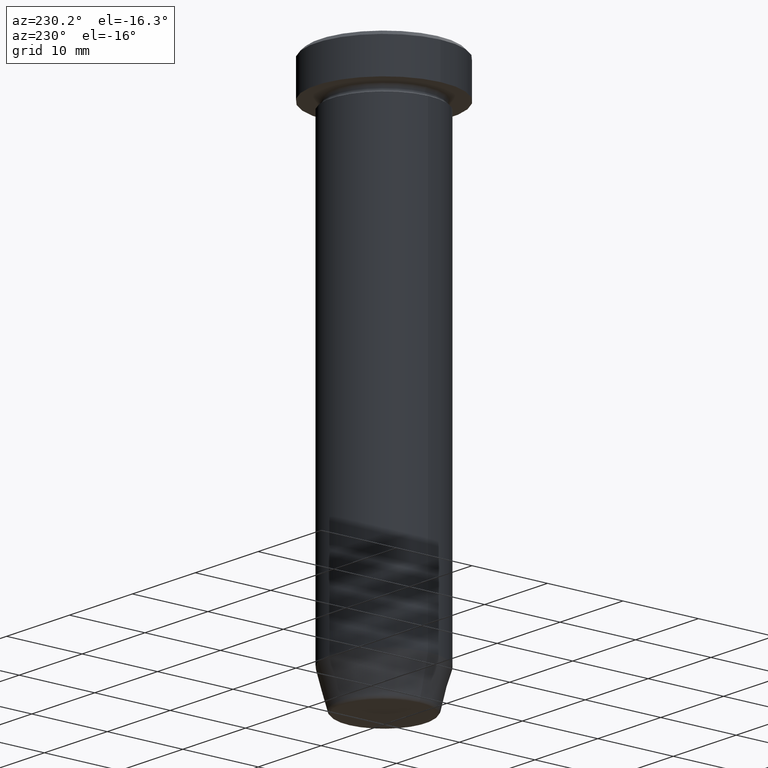
[diagram: clean part render]
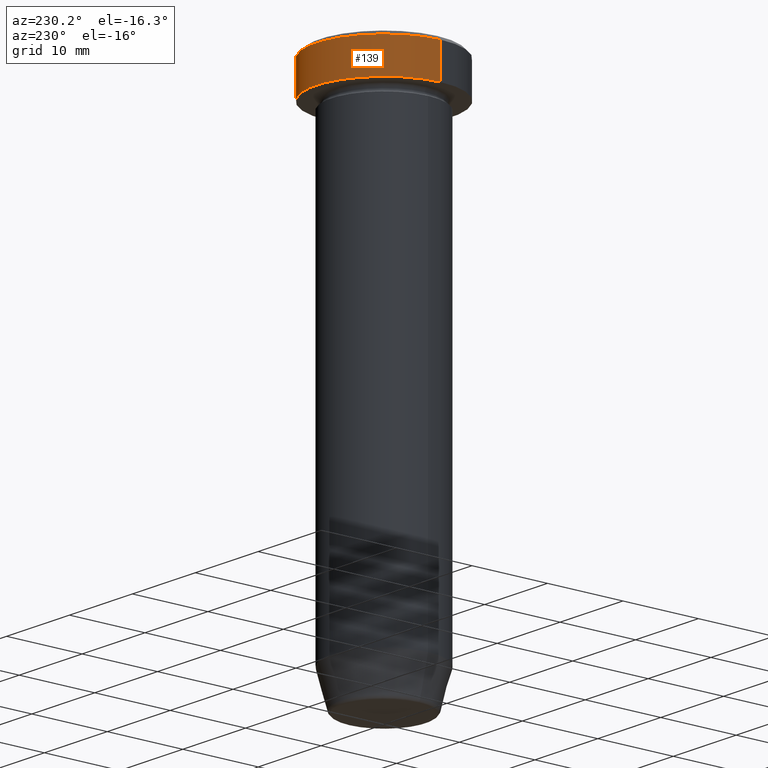
[diagram: same view with one face highlighted and labeled with its STEP entity id]
A machine part, auxiliary view. The second image highlights one B-rep face of the part: STEP entity #139.
In plain terms, the highlighted cylindrical surface (partial cylindrical patch) has radius 9 mm, axis along (-0, -0, 1).
Its self-contained STEP definition (entity closure, byte-faithful):
#31 = CIRCLE ( 'NONE', #121, 9.000000000000000000 ) ;
#51 = CARTESIAN_POINT ( 'NONE',  ( 9.000000000000000000, 0.000000000000000000, -0.4999999999999952260 ) ) ;
#58 = LINE ( 'NONE', #484, #463 ) ;
#60 = DIRECTION ( 'NONE',  ( 1.000000000000000000, 0.000000000000000000, 0.000000000000000000 ) ) ;
#85 = DIRECTION ( 'NONE',  ( -0.000000000000000000, -0.000000000000000000, 1.000000000000000000 ) ) ;
#90 = DIRECTION ( 'NONE',  ( -0.000000000000000000, -0.000000000000000000, 1.000000000000000000 ) ) ;
#111 = ORIENTED_EDGE ( 'NONE', *, *, #538, .F. ) ;
#121 = AXIS2_PLACEMENT_3D ( 'NONE', #552, #466, #134 ) ;
#134 = DIRECTION ( 'NONE',  ( 1.000000000000000000, 0.000000000000000000, 0.000000000000000000 ) ) ;
#139 = ADVANCED_FACE ( 'NONE', ( #320 ), #587, .T. ) ;
#160 = AXIS2_PLACEMENT_3D ( 'NONE', #482, #523, #60 ) ;
#223 = CARTESIAN_POINT ( 'NONE',  ( 9.000000000000000000, 0.000000000000000000, 0.000000000000000000 ) ) ;
#228 = ORIENTED_EDGE ( 'NONE', *, *, #314, .T. ) ;
#255 = VERTEX_POINT ( 'NONE', #505 ) ;
#281 = VERTEX_POINT ( 'NONE', #522 ) ;
#302 = CARTESIAN_POINT ( 'NONE',  ( -9.000000000000000000, 1.102182119232617714E-15, -0.4999999999999952260 ) ) ;
#314 = EDGE_CURVE ( 'NONE', #377, #487, #336, .T. ) ;
#316 = DIRECTION ( 'NONE',  ( 1.000000000000000000, 0.000000000000000000, 0.000000000000000000 ) ) ;
#320 = FACE_OUTER_BOUND ( 'NONE', #379, .T. ) ;
#336 = CIRCLE ( 'NONE', #160, 9.000000000000000000 ) ;
#348 = EDGE_CURVE ( 'NONE', #255, #377, #58, .T. ) ;
#362 = VECTOR ( 'NONE', #90, 1000.000000000000000 ) ;
#364 = DIRECTION ( 'NONE',  ( -0.000000000000000000, -0.000000000000000000, 1.000000000000000000 ) ) ;
#377 = VERTEX_POINT ( 'NONE', #302 ) ;
#379 = EDGE_LOOP ( 'NONE', ( #456, #553, #228, #111 ) ) ;
#416 = AXIS2_PLACEMENT_3D ( 'NONE', #557, #85, #316 ) ;
#418 = EDGE_CURVE ( 'NONE', #281, #255, #31, .T. ) ;
#456 = ORIENTED_EDGE ( 'NONE', *, *, #418, .T. ) ;
#463 = VECTOR ( 'NONE', #364, 1000.000000000000000 ) ;
#466 = DIRECTION ( 'NONE',  ( -0.000000000000000000, -0.000000000000000000, 1.000000000000000000 ) ) ;
#482 = CARTESIAN_POINT ( 'NONE',  ( 0.000000000000000000, 0.000000000000000000, -0.4999999999999952260 ) ) ;
#484 = CARTESIAN_POINT ( 'NONE',  ( -9.000000000000000000, 1.102182119232617714E-15, 0.000000000000000000 ) ) ;
#487 = VERTEX_POINT ( 'NONE', #51 ) ;
#505 = CARTESIAN_POINT ( 'NONE',  ( -9.000000000000000000, 1.102182119232617714E-15, -5.000000000000000000 ) ) ;
#514 = LINE ( 'NONE', #223, #362 ) ;
#522 = CARTESIAN_POINT ( 'NONE',  ( 9.000000000000000000, 0.000000000000000000, -5.000000000000000000 ) ) ;
#523 = DIRECTION ( 'NONE',  ( 0.000000000000000000, 0.000000000000000000, -1.000000000000000000 ) ) ;
#538 = EDGE_CURVE ( 'NONE', #281, #487, #514, .T. ) ;
#552 = CARTESIAN_POINT ( 'NONE',  ( 0.000000000000000000, 0.000000000000000000, -5.000000000000000000 ) ) ;
#553 = ORIENTED_EDGE ( 'NONE', *, *, #348, .T. ) ;
#557 = CARTESIAN_POINT ( 'NONE',  ( 0.000000000000000000, 0.000000000000000000, 0.000000000000000000 ) ) ;
#587 = CYLINDRICAL_SURFACE ( 'NONE', #416, 9.000000000000000000 ) ;